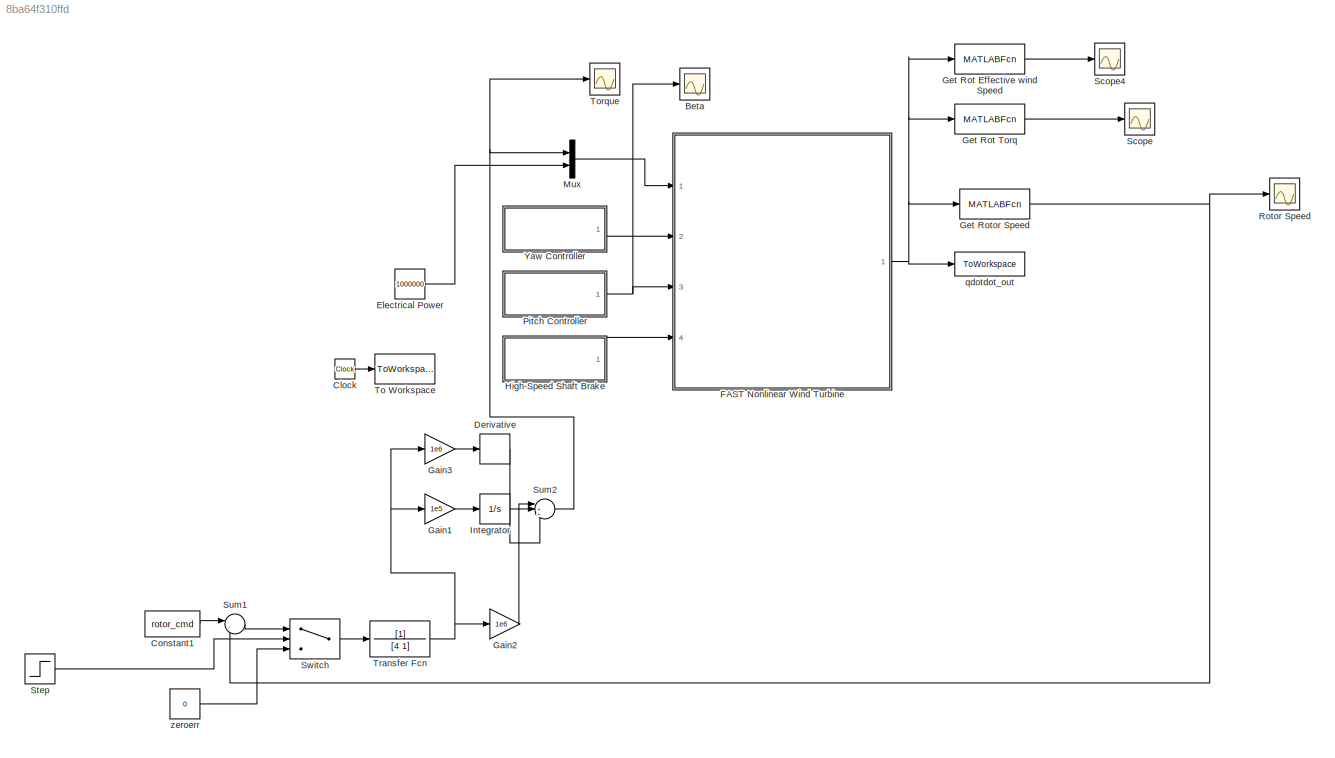
MODEL slx_8ba64f310ffd
KIND model
CONFIG AbsTol = auto
CONFIG EnableMultiTasking = on
CONFIG FixedStep = DT
CONFIG InitFcn = Lambda_ref = 5;
CONFIG MaxStep = DT
CONFIG MinStep = auto
CONFIG RelTol = 1e-3
CONFIG SampleTimeConstraint = Unconstrained
CONFIG Solver = ode4
CONFIG SolverName = ode4
CONFIG StartTime = 0.0
CONFIG StopTime = TMax
BLOCK [Scope] Beta
  Floating = off
  NumInputPorts = 1
  Ports = [1]
  ScopeSpecificationString = Simulink.scopes.TimeScopeBlockCfg('CurrentConfiguration', extmgr.ConfigurationSet(extmgr.Configuration('Core','General UI',true),extmgr.Configuration('Core','Source UI',true),extmgr.Configuration('Sources','WiredSimulink',true,'DataLoggingVariableName','ScopeData2'),extmgr.Configuration('Visuals','Time Domain',true,'SerializedDisplays',{struct('MinYLimReal','-0.91427','MaxYLimReal','8.2284','YLabe...<+1434ch>
BLOCK [Clock] Clock
BLOCK [Constant] Constant1
  Value = rotor_cmd
BLOCK [Derivative] Derivative
  CoefficientInTFapproximation = 100
BLOCK [Constant] Electrical Power
  Value = 1000000
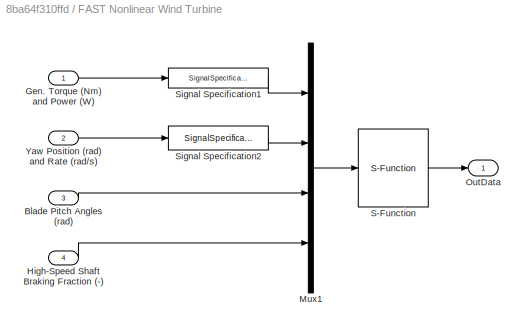
BLOCK [SubSystem] FAST Nonlinear Wind Turbine
  Ports = [4, 1]
  RequestExecContextInheritance = off
BLOCK [Inport] FAST Nonlinear Wind Turbine/Blade Pitch Angles (rad)
  Port = 3
BLOCK [Inport] FAST Nonlinear Wind Turbine/Gen. Torque (Nm) and Power (W)
BLOCK [Inport] FAST Nonlinear Wind Turbine/High-Speed Shaft Braking Fraction (-)
  Port = 4
BLOCK [Mux] FAST Nonlinear Wind Turbine/Mux1
  DisplayOption = bar
  Ports = [4, 1]
BLOCK [Outport] FAST Nonlinear Wind Turbine/OutData
  VectorParamsAs1DForOutWhenUnconnected = off
BLOCK [S-Function] FAST Nonlinear Wind Turbine/S-Function
  EnableBusSupport = off
  FunctionName = FAST_SFunc
  Parameters = FAST_InputFileName, TMax, 0
  Ports = [1, 1]
  SFcnIsStateOwnerBlock = off
  SFunctionDeploymentMode = off
BLOCK [SignalSpecification] FAST Nonlinear Wind Turbine/Signal Specification1
  Dimensions = 2
  OutDataTypeStr = double
  SignalType = real
BLOCK [SignalSpecification] FAST Nonlinear Wind Turbine/Signal Specification2
  Dimensions = 2
  OutDataTypeStr = double
  SignalType = real
BLOCK [Inport] FAST Nonlinear Wind Turbine/Yaw Position (rad) and Rate (rad//s)
  Port = 2
BLOCK [Gain] Gain1
  Gain = 1e5
BLOCK [Gain] Gain2
  Gain = 1e6
BLOCK [Gain] Gain3
  Gain = 1e6
BLOCK [MATLABFcn] Get Rot Effective wind Speed
  MATLABFcn = u(strmatch('Wind1VelX',OutList))
  Ports = [1, 1]
BLOCK [MATLABFcn] Get Rot Torq
  MATLABFcn = u(strmatch('RotTorq',OutList))
  Ports = [1, 1]
BLOCK [MATLABFcn] Get Rotor Speed
  MATLABFcn = u(strmatch('RotSpeed',OutList))
  Ports = [1, 1]
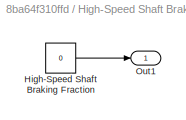
BLOCK [SubSystem] High-Speed Shaft Brake
  Ports = [0, 1]
  RequestExecContextInheritance = off
BLOCK [Constant] High-Speed Shaft Brake/High-Speed Shaft Braking Fraction
  Value = 0
BLOCK [Outport] High-Speed Shaft Brake/Out1
  VectorParamsAs1DForOutWhenUnconnected = off
BLOCK [Integrator] Integrator
  Ports = [1, 1]
BLOCK [Mux] Mux
  DisplayOption = bar
  Inputs = 2
  Ports = [2, 1]
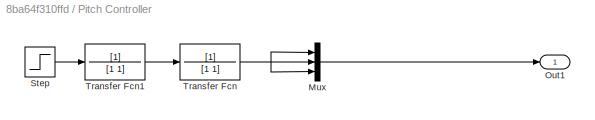
BLOCK [SubSystem] Pitch Controller
  Ports = [0, 1]
  RequestExecContextInheritance = off
BLOCK [Mux] Pitch Controller/Mux
  DisplayOption = bar
  Inputs = 3
  Ports = [3, 1]
BLOCK [Outport] Pitch Controller/Out1
  VectorParamsAs1DForOutWhenUnconnected = off
BLOCK [Step] Pitch Controller/Step
  After = pitch_cmd
  SampleTime = 0
  Time = 0.1
BLOCK [TransferFcn] Pitch Controller/Transfer Fcn
  Denominator = [1 1]
BLOCK [TransferFcn] Pitch Controller/Transfer Fcn1
  Denominator = [1 1]
BLOCK [Scope] Rotor Speed
  Floating = off
  NumInputPorts = 1
  Ports = [1]
  ScopeSpecificationString = Simulink.scopes.TimeScopeBlockCfg('CurrentConfiguration', extmgr.ConfigurationSet(extmgr.Configuration('Core','General UI',true),extmgr.Configuration('Core','Source UI',true),extmgr.Configuration('Sources','WiredSimulink',true,'DataLoggingVariableName','ScopeData1'),extmgr.Configuration('Visuals','Time Domain',true,'SerializedDisplays',{struct('MinYLimReal','6.96057','MaxYLimReal','27.31298','YLab...<+1750ch>
BLOCK [Scope] Scope
  Floating = off
  NumInputPorts = 1
  Ports = [1]
  ScopeSpecificationString = Simulink.scopes.TimeScopeBlockCfg('CurrentConfiguration', extmgr.ConfigurationSet(extmgr.Configuration('Core','General UI',true),extmgr.Configuration('Core','Source UI',true),extmgr.Configuration('Sources','WiredSimulink',true),extmgr.Configuration('Visuals','Time Domain',true,'SerializedDisplays',{struct('MinYLimReal','6343.99501','MaxYLimReal','7365.71795','YLabelReal','','MinYLimMag','6343.9950...<+1453ch>
BLOCK [Scope] Scope4
  Floating = off
  NumInputPorts = 1
  Ports = [1]
  ScopeSpecificationString = Simulink.scopes.TimeScopeBlockCfg('CurrentConfiguration', extmgr.ConfigurationSet(extmgr.Configuration('Core','General UI',true),extmgr.Configuration('Core','Source UI',true),extmgr.Configuration('Sources','WiredSimulink',true,'DataLoggingVariableName','ScopeData4'),extmgr.Configuration('Visuals','Time Domain',true,'SerializedDisplays',{struct('MinYLimReal','5.00000','MaxYLimReal','25.00000','YLab...<+1418ch>
BLOCK [Step] Step
  Before = -1
  SampleTime = 0
  Time = 10
BLOCK [Sum] Sum1
  Inputs = |-+
  Ports = [2, 1]
BLOCK [Sum] Sum2
  Inputs = |+++
  Ports = [3, 1]
BLOCK [Switch] Switch
  Criteria = u2 > Threshold
  InputSameDT = off
  SaturateOnIntegerOverflow = off
BLOCK [ToWorkspace] To Workspace
  MaxDataPoints = inf
  Ports = [1]
  SampleTime = -1
  VariableName = Time
BLOCK [Scope] Torque
  Floating = off
  NumInputPorts = 1
  Ports = [1]
  ScopeSpecificationString = Simulink.scopes.TimeScopeBlockCfg('CurrentConfiguration', extmgr.ConfigurationSet(extmgr.Configuration('Core','General UI',true),extmgr.Configuration('Core','Source UI',true),extmgr.Configuration('Sources','WiredSimulink',true,'DataLoggingVariableName','ScopeData1'),extmgr.Configuration('Visuals','Time Domain',true,'SerializedDisplays',{struct('MinYLimReal','-482645.31516','MaxYLimReal','4343807.8...<+1424ch>
BLOCK [TransferFcn] Transfer Fcn
  Denominator = [4 1]
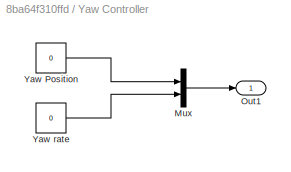
BLOCK [SubSystem] Yaw Controller
  Ports = [0, 1]
  RequestExecContextInheritance = off
BLOCK [Mux] Yaw Controller/Mux
  DisplayOption = bar
  Inputs = 2
  Ports = [2, 1]
BLOCK [Outport] Yaw Controller/Out1
  VectorParamsAs1DForOutWhenUnconnected = off
BLOCK [Constant] Yaw Controller/Yaw Position
  Value = 0
BLOCK [Constant] Yaw Controller/Yaw rate
  Value = 0
BLOCK [ToWorkspace] qdotdot_out
  MaxDataPoints = inf
  Ports = [1]
  SampleTime = -1
  VariableName = OutData
BLOCK [Constant] zeroerr
  Value = 0
LINE Clock:1 -> To Workspace:1
LINE Constant1:1 -> Sum1:1
LINE Derivative:1 -> Sum2:3
LINE Electrical Power:1 -> Mux:2
LINE FAST Nonlinear Wind Turbine/Blade Pitch Angles (rad):1 -> FAST Nonlinear Wind Turbine/Mux1:3
LINE FAST Nonlinear Wind Turbine/Gen. Torque (Nm) and Power (W):1 -> FAST Nonlinear Wind Turbine/Signal Specification1:1
LINE FAST Nonlinear Wind Turbine/High-Speed Shaft Braking Fraction (-):1 -> FAST Nonlinear Wind Turbine/Mux1:4
LINE FAST Nonlinear Wind Turbine/Mux1:1 -> FAST Nonlinear Wind Turbine/S-Function:1
LINE FAST Nonlinear Wind Turbine/S-Function:1 -> FAST Nonlinear Wind Turbine/OutData:1
LINE FAST Nonlinear Wind Turbine/Signal Specification1:1 -> FAST Nonlinear Wind Turbine/Mux1:1
LINE FAST Nonlinear Wind Turbine/Signal Specification2:1 -> FAST Nonlinear Wind Turbine/Mux1:2
LINE FAST Nonlinear Wind Turbine/Yaw Position (rad) and Rate (rad//s):1 -> FAST Nonlinear Wind Turbine/Signal Specification2:1
NET FAST Nonlinear Wind Turbine:1 -> Get Rot Effective wind Speed:1, Get Rot Torq:1, Get Rotor Speed:1, qdotdot_out:1
LINE Gain1:1 -> Integrator:1
LINE Gain2:1 -> Sum2:2
LINE Gain3:1 -> Derivative:1
LINE Get Rot Effective wind Speed:1 -> Scope4:1
LINE Get Rot Torq:1 -> Scope:1
NET Get Rotor Speed:1 -> Rotor Speed:1, Sum1:2
LINE High-Speed Shaft Brake/High-Speed Shaft Braking Fraction:1 -> High-Speed Shaft Brake/Out1:1
LINE High-Speed Shaft Brake:1 -> FAST Nonlinear Wind Turbine:4
LINE Integrator:1 -> Sum2:1
LINE Mux:1 -> FAST Nonlinear Wind Turbine:1
LINE Pitch Controller/Mux:1 -> Pitch Controller/Out1:1
LINE Pitch Controller/Step:1 -> Pitch Controller/Transfer Fcn1:1
LINE Pitch Controller/Transfer Fcn1:1 -> Pitch Controller/Transfer Fcn:1
NET Pitch Controller/Transfer Fcn:1 -> Pitch Controller/Mux:1, Pitch Controller/Mux:2, Pitch Controller/Mux:3
NET Pitch Controller:1 -> Beta:1, FAST Nonlinear Wind Turbine:3
LINE Step:1 -> Switch:2
LINE Sum1:1 -> Switch:1
NET Sum2:1 -> Mux:1, Torque:1
LINE Switch:1 -> Transfer Fcn:1
NET Transfer Fcn:1 -> Gain1:1, Gain2:1, Gain3:1
LINE Yaw Controller/Mux:1 -> Yaw Controller/Out1:1
LINE Yaw Controller/Yaw Position:1 -> Yaw Controller/Mux:1
LINE Yaw Controller/Yaw rate:1 -> Yaw Controller/Mux:2
LINE Yaw Controller:1 -> FAST Nonlinear Wind Turbine:2
LINE zeroerr:1 -> Switch:3
note: NET lines group one-source signal fan-out (src -> all destinations, sorted); 1:1 wires keep LINE
